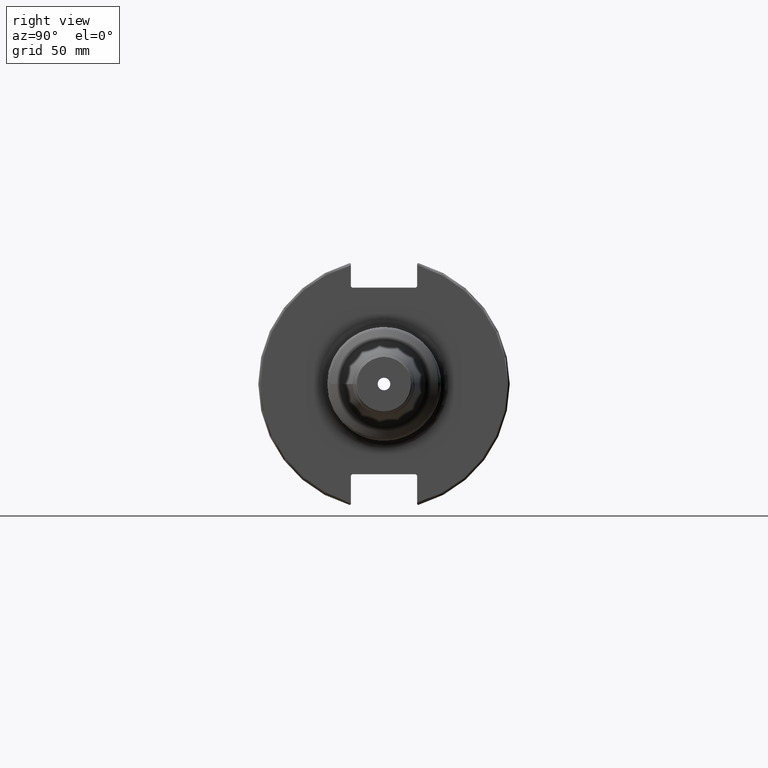
[diagram: clean part render]
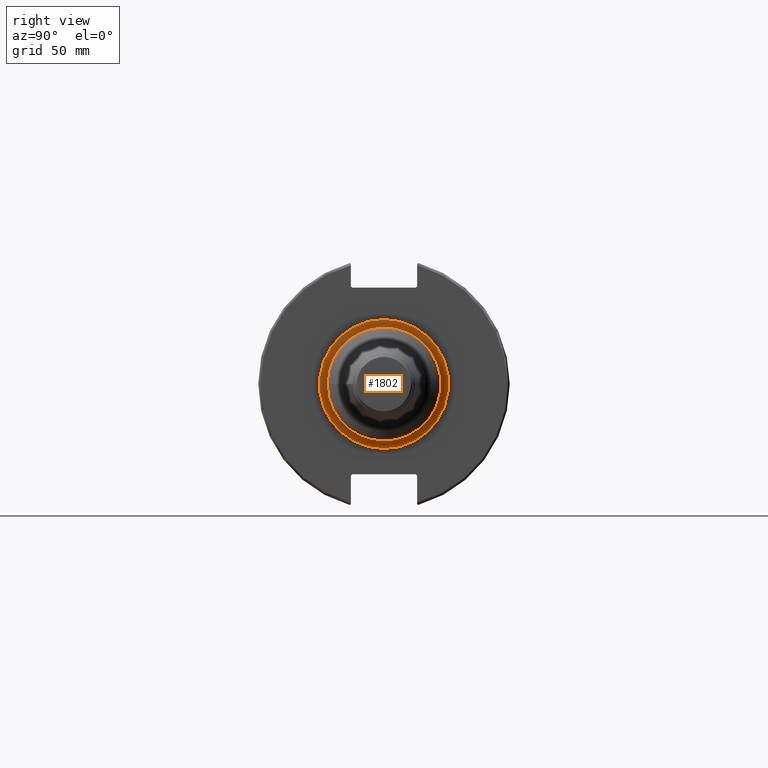
[diagram: same view with one face highlighted and labeled with its STEP entity id]
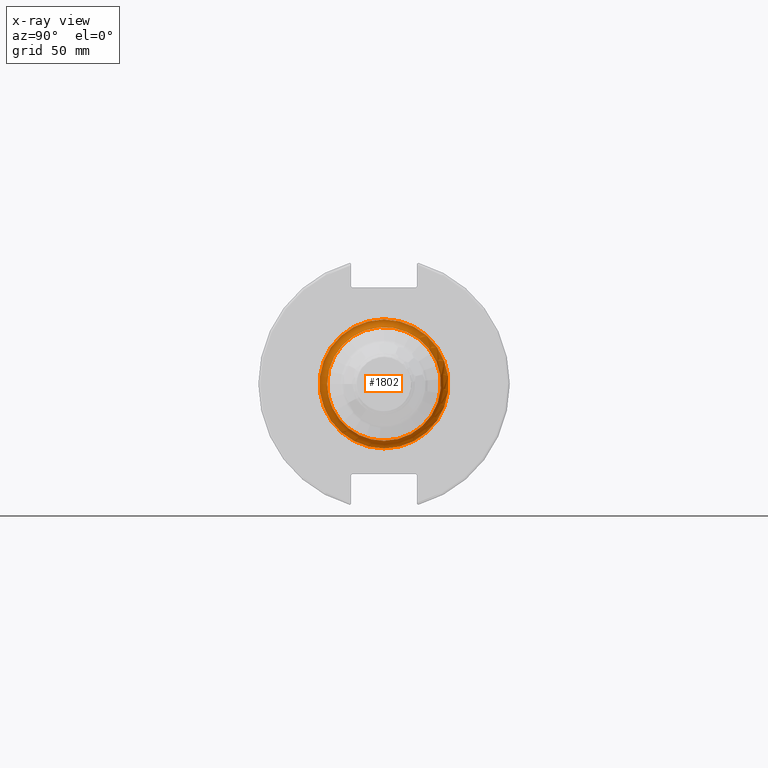
[diagram: x-ray of the same camera — body ghosted, the highlighted face saturated]
A machine part, right view. The second image highlights one B-rep face of the part: STEP entity #1802.
The next image is the same camera in x-ray: the body ghosted, the highlighted face saturated — about 0% of this face is hidden behind the body in this view.
In plain terms, the highlighted toroidal blend (fillet) surface has major radius 25.25 mm and minor (blend) radius 3 mm.
Its self-contained STEP definition (entity closure, byte-faithful):
#390=FACE_OUTER_BOUND('',#496,.T.);
#496=EDGE_LOOP('',(#1243,#1244,#1245,#1246,#1247));
#629=CIRCLE('',#1943,22.25);
#630=CIRCLE('',#1944,22.25);
#631=CIRCLE('',#1946,3.);
#632=CIRCLE('',#1947,25.25);
#751=VERTEX_POINT('',#2757);
#752=VERTEX_POINT('',#2759);
#753=VERTEX_POINT('',#2763);
#945=EDGE_CURVE('',#752,#751,#629,.T.);
#946=EDGE_CURVE('',#751,#752,#630,.T.);
#947=EDGE_CURVE('',#752,#753,#631,.T.);
#948=EDGE_CURVE('',#753,#753,#632,.T.);
#1243=ORIENTED_EDGE('',*,*,#946,.T.);
#1244=ORIENTED_EDGE('',*,*,#947,.T.);
#1245=ORIENTED_EDGE('',*,*,#948,.T.);
#1246=ORIENTED_EDGE('',*,*,#947,.F.);
#1247=ORIENTED_EDGE('',*,*,#945,.T.);
#1781=TOROIDAL_SURFACE('',#1945,25.25,3.);
#1802=ADVANCED_FACE('',(#390),#1781,.F.);
#1943=AXIS2_PLACEMENT_3D('',#2760,#2197,#2198);
#1944=AXIS2_PLACEMENT_3D('',#2761,#2199,#2200);
#1945=AXIS2_PLACEMENT_3D('',#2762,#2201,#2202);
#1946=AXIS2_PLACEMENT_3D('',#2764,#2203,#2204);
#1947=AXIS2_PLACEMENT_3D('',#2765,#2205,#2206);
#2197=DIRECTION('center_axis',(-1.,0.,0.));
#2198=DIRECTION('ref_axis',(0.,-1.,-1.22464679914735E-16));
#2199=DIRECTION('center_axis',(-1.,0.,0.));
#2200=DIRECTION('ref_axis',(0.,-1.,-1.22464679914735E-16));
#2201=DIRECTION('center_axis',(-1.,0.,0.));
#2202=DIRECTION('ref_axis',(0.,0.,1.));
#2203=DIRECTION('center_axis',(0.,-1.,1.22464679914735E-16));
#2204=DIRECTION('ref_axis',(0.,-1.22464679914735E-16,-1.));
#2205=DIRECTION('center_axis',(1.,0.,0.));
#2206=DIRECTION('ref_axis',(0.,-1.,-1.22464679914735E-16));
#2757=CARTESIAN_POINT('',(22.05,-22.25,-2.72483912810286E-15));
#2759=CARTESIAN_POINT('',(22.05,-2.72483912810286E-15,-22.25));
#2760=CARTESIAN_POINT('Origin',(22.05,0.,0.));
#2761=CARTESIAN_POINT('Origin',(22.05,0.,0.));
#2762=CARTESIAN_POINT('Origin',(22.05,0.,0.));
#2763=CARTESIAN_POINT('',(19.05,-3.09223316784707E-15,-25.25));
#2764=CARTESIAN_POINT('Origin',(22.05,-3.09223316784707E-15,-25.25));
#2765=CARTESIAN_POINT('Origin',(19.05,0.,0.));